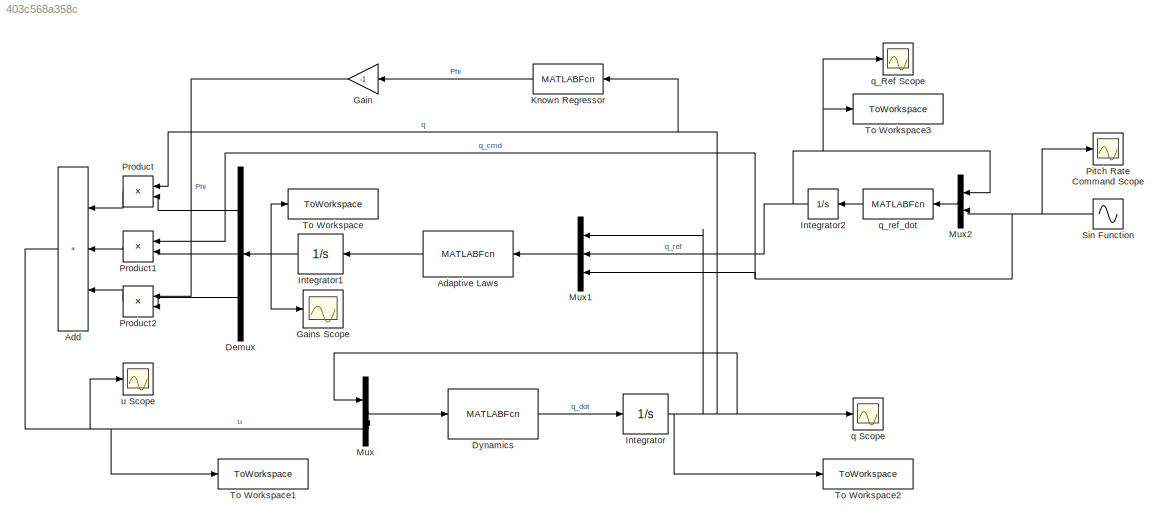
MODEL slx_403c568a358c
KIND model
CONFIG AbsTol = auto
CONFIG EnableMultiTasking = off
CONFIG FixedStep = auto
CONFIG MaxStep = auto
CONFIG MinStep = auto
CONFIG RelTol = 1e-3
CONFIG SampleTimeConstraint = Unconstrained
CONFIG SolverName = VariableStepAuto
CONFIG StartTime = 0.0
CONFIG StopTime = TF
BLOCK [MATLABFcn] Adaptive Laws
  MATLABFcn = AdaptiveLaws(u(1),u(2),u(3))
  NameLocation = top
  OutputDimensions = 3
  Ports = [1, 1]
BLOCK [Sum] Add
  IconShape = rectangular
  Inputs = +++
  NameLocation = top
  Ports = [3, 1]
BLOCK [Demux] Demux
  NameLocation = top
  Outputs = 3
  Ports = [1, 3]
BLOCK [MATLABFcn] Dynamics
  MATLABFcn = Dynamics(u(1),u(2))
  Ports = [1, 1]
BLOCK [Gain] Gain
  Gain = -1
BLOCK [Scope] Gains Scope
  Floating = off
  NumInputPorts = 1
  Ports = [1]
  ScopeSpecificationString = Simulink.scopes.TimeScopeBlockCfg('CurrentConfiguration', extmgr.ConfigurationSet(extmgr.Configuration('Core','General UI',true),extmgr.Configuration('Core','Source UI',true),extmgr.Configuration('Sources','WiredSimulink',true,'DataLoggingVariableName','ScopeData2'),extmgr.Configuration('Visuals','Time Domain',true,'SerializedDisplays',{struct('MinYLimReal','-0.76514','MaxYLimReal','0.68735','YLab...<+1404ch>
BLOCK [Integrator] Integrator
  InitialCondition = q0
  Ports = [1, 1]
BLOCK [Integrator] Integrator1
  InitialCondition = u0
  NameLocation = top
  Ports = [1, 1]
BLOCK [Integrator] Integrator2
  InitialCondition = q_ref0
  NameLocation = top
  Ports = [1, 1]
BLOCK [MATLABFcn] Known Regressor 
  MATLABFcn = Phi(u)
  NameLocation = top
  Ports = [1, 1]
BLOCK [Mux] Mux
  DisplayOption = bar
  Inputs = 2
  Ports = [2, 1]
BLOCK [Mux] Mux1
  DisplayOption = bar
  Inputs = 3
  NameLocation = top
  Ports = [3, 1]
BLOCK [Mux] Mux2
  DisplayOption = bar
  Inputs = 2
  NameLocation = top
  Ports = [2, 1]
BLOCK [Scope] Pitch Rate Command Scope
  Floating = off
  NumInputPorts = 1
  Ports = [1]
  ScopeSpecificationString = Simulink.scopes.TimeScopeBlockCfg('CurrentConfiguration', extmgr.ConfigurationSet(extmgr.Configuration('Core','General UI',true),extmgr.Configuration('Core','Source UI',true),extmgr.Configuration('Sources','WiredSimulink',true),extmgr.Configuration('Visuals','Time Domain',true),extmgr.Configuration('Tools','Plot Navigation',true),extmgr.Configuration('Tools','Measurements',true)),'Version','2021b'...<+1ch>
BLOCK [Product] Product
  NameLocation = top
  Ports = [2, 1]
BLOCK [Product] Product1
  NameLocation = top
  Ports = [2, 1]
BLOCK [Product] Product2
  NameLocation = top
  Ports = [2, 1]
BLOCK [Sin] Sin Function 
  Amplitude = Amplitude
  Frequency = Frequency
  NameLocation = top
  Ports = [0, 1]
  SampleTime = 0
BLOCK [ToWorkspace] To Workspace
  FixptAsFi = on
  MaxDataPoints = inf
  Ports = [1]
  SampleTime = -1
  SaveFormat = Timeseries
  VariableName = Gains
BLOCK [ToWorkspace] To Workspace1
  FixptAsFi = on
  MaxDataPoints = inf
  Ports = [1]
  SampleTime = -1
  SaveFormat = Timeseries
  VariableName = u
BLOCK [ToWorkspace] To Workspace2
  FixptAsFi = on
  MaxDataPoints = inf
  Ports = [1]
  SampleTime = -1
  SaveFormat = Timeseries
  VariableName = q
BLOCK [ToWorkspace] To Workspace3
  FixptAsFi = on
  MaxDataPoints = inf
  Ports = [1]
  SampleTime = -1
  SaveFormat = Timeseries
  VariableName = q_ref
BLOCK [Scope] q Scope
  Floating = off
  NumInputPorts = 1
  Ports = [1]
  ScopeSpecificationString = Simulink.scopes.TimeScopeBlockCfg('CurrentConfiguration', extmgr.ConfigurationSet(extmgr.Configuration('Core','General UI',true),extmgr.Configuration('Core','Source UI',true),extmgr.Configuration('Sources','WiredSimulink',true,'DataLoggingVariableName','ScopeData5'),extmgr.Configuration('Visuals','Time Domain',true,'SerializedDisplays',{struct('MinYLimReal','-0.0987','MaxYLimReal','0.0987','YLabel...<+1384ch>
BLOCK [Scope] q_Ref Scope
  Floating = off
  NumInputPorts = 1
  Ports = [1]
  ScopeSpecificationString = Simulink.scopes.TimeScopeBlockCfg('CurrentConfiguration', extmgr.ConfigurationSet(extmgr.Configuration('Core','General UI',true),extmgr.Configuration('Core','Source UI',true),extmgr.Configuration('Sources','WiredSimulink',true,'DataLoggingVariableName','ScopeData3'),extmgr.Configuration('Visuals','Time Domain',true,'SerializedDisplays',{struct('MinYLimReal','-0.0987','MaxYLimReal','0.0987','YLabel...<+1384ch>
BLOCK [MATLABFcn] q_ref_dot
  MATLABFcn = PitchRate(u(1),u(2))
  NameLocation = top
  Ports = [1, 1]
BLOCK [Scope] u Scope
  Floating = off
  NumInputPorts = 1
  Ports = [1]
  ScopeSpecificationString = Simulink.scopes.TimeScopeBlockCfg('CurrentConfiguration', extmgr.ConfigurationSet(extmgr.Configuration('Core','General UI',true),extmgr.Configuration('Core','Source UI',true),extmgr.Configuration('Sources','WiredSimulink',true,'DataLoggingVariableName','ScopeData4'),extmgr.Configuration('Visuals','Time Domain',true,'SerializedDisplays',{struct('MinYLimReal','-0.01743','MaxYLimReal','0.01947','YLab...<+1360ch>
LINE Adaptive Laws:1 -> Integrator1:1
NET Add:1 -> Mux:2, To Workspace1:1, u Scope:1
LINE Demux:1 -> Product:2
LINE Demux:2 -> Product1:2
LINE Demux:3 -> Product2:2
LINE Dynamics:1 -> Integrator:1
LINE Gain:1 -> Product2:1
NET Integrator1:1 -> Demux:1, Gains Scope:1, To Workspace:1
NET Integrator2:1 -> Mux1:2, Mux2:1, To Workspace3:1, q_Ref Scope:1
NET Integrator:1 -> Known Regressor :1, Mux1:1, Mux:1, Product:1, To Workspace2:1, q Scope:1
LINE Known Regressor :1 -> Gain:1
LINE Mux1:1 -> Adaptive Laws:1
LINE Mux2:1 -> q_ref_dot:1
LINE Mux:1 -> Dynamics:1
LINE Product1:1 -> Add:2
LINE Product2:1 -> Add:3
LINE Product:1 -> Add:1
NET Sin Function :1 -> Mux1:3, Mux2:2, Pitch Rate Command Scope:1, Product1:1
LINE q_ref_dot:1 -> Integrator2:1
note: NET lines group one-source signal fan-out (src -> all destinations, sorted); 1:1 wires keep LINE
